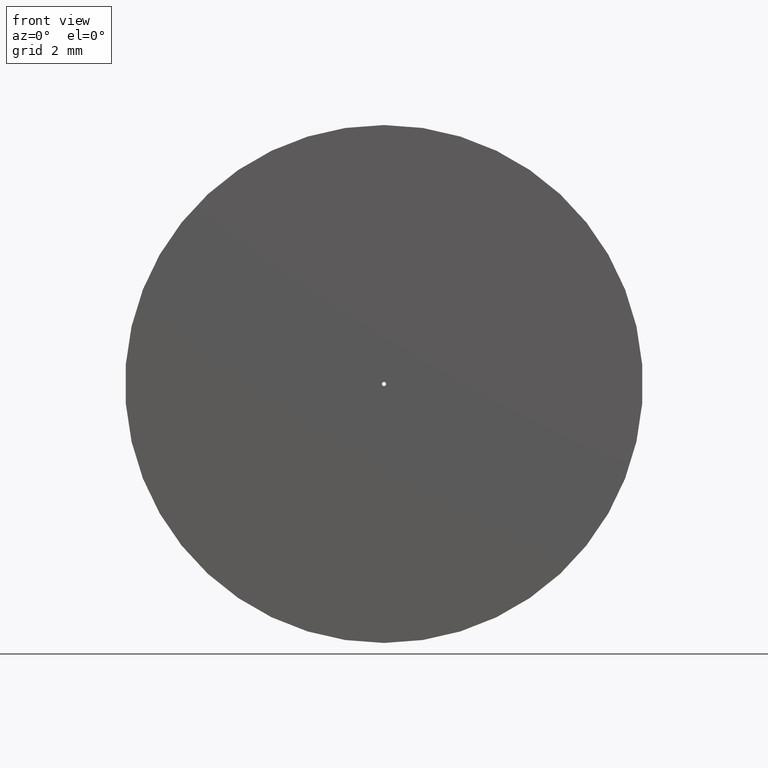
[diagram: clean part render]
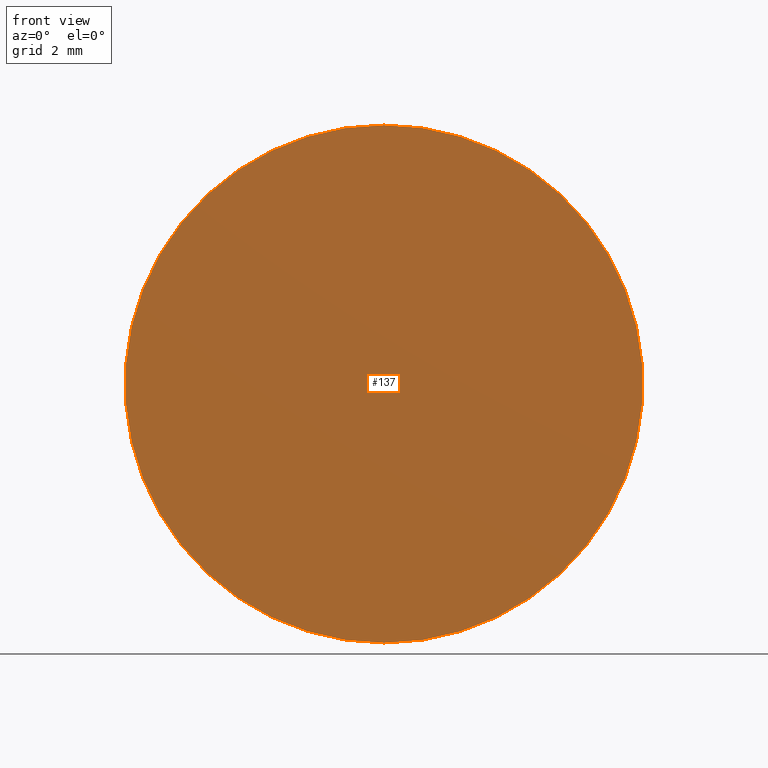
[diagram: same view with one face highlighted and labeled with its STEP entity id]
A machine part, front view. The second image highlights one B-rep face of the part: STEP entity #137.
In plain terms, the highlighted planar face has unit normal (0, 1, 0).
Its self-contained STEP definition (entity closure, byte-faithful):
#6 = AXIS2_PLACEMENT_3D ( 'NONE', #233, #236, #176 ) ;
#25 = CIRCLE ( 'NONE', #241, 4.750000000000000000 ) ;
#38 = AXIS2_PLACEMENT_3D ( 'NONE', #139, #83, #123 ) ;
#41 = CARTESIAN_POINT ( 'NONE',  ( 0.000000000000000000, 0.000000000000000000, 0.000000000000000000 ) ) ;
#42 = ORIENTED_EDGE ( 'NONE', *, *, #53, .T. ) ;
#53 = EDGE_CURVE ( 'NONE', #78, #117, #141, .T. ) ;
#56 = ORIENTED_EDGE ( 'NONE', *, *, #103, .F. ) ;
#57 = CIRCLE ( 'NONE', #77, 0.03749999999999999861 ) ;
#66 = CARTESIAN_POINT ( 'NONE',  ( 0.000000000000000000, 0.000000000000000000, -4.750000000000000000 ) ) ;
#77 = AXIS2_PLACEMENT_3D ( 'NONE', #120, #86, #224 ) ;
#78 = VERTEX_POINT ( 'NONE', #82 ) ;
#79 = DIRECTION ( 'NONE',  ( 0.000000000000000000, 0.000000000000000000, 1.000000000000000000 ) ) ;
#82 = CARTESIAN_POINT ( 'NONE',  ( 0.000000000000000000, 0.000000000000000000, -0.03749999999999999861 ) ) ;
#83 = DIRECTION ( 'NONE',  ( 0.000000000000000000, 1.000000000000000000, 0.000000000000000000 ) ) ;
#85 = DIRECTION ( 'NONE',  ( 0.000000000000000000, -0.000000000000000000, 1.000000000000000000 ) ) ;
#86 = DIRECTION ( 'NONE',  ( 0.000000000000000000, 1.000000000000000000, 0.000000000000000000 ) ) ;
#90 = AXIS2_PLACEMENT_3D ( 'NONE', #158, #161, #85 ) ;
#91 = VERTEX_POINT ( 'NONE', #235 ) ;
#95 = FACE_OUTER_BOUND ( 'NONE', #173, .T. ) ;
#103 = EDGE_CURVE ( 'NONE', #91, #212, #25, .T. ) ;
#114 = DIRECTION ( 'NONE',  ( 0.000000000000000000, 1.000000000000000000, 0.000000000000000000 ) ) ;
#117 = VERTEX_POINT ( 'NONE', #216 ) ;
#118 = FACE_BOUND ( 'NONE', #136, .T. ) ;
#120 = CARTESIAN_POINT ( 'NONE',  ( 0.000000000000000000, 0.000000000000000000, 0.000000000000000000 ) ) ;
#123 = DIRECTION ( 'NONE',  ( 0.000000000000000000, 0.000000000000000000, 1.000000000000000000 ) ) ;
#136 = EDGE_LOOP ( 'NONE', ( #42, #177 ) ) ;
#137 = ADVANCED_FACE ( 'NONE', ( #95, #118 ), #183, .F. ) ;
#139 = CARTESIAN_POINT ( 'NONE',  ( 0.000000000000000000, 0.000000000000000000, 0.000000000000000000 ) ) ;
#141 = CIRCLE ( 'NONE', #6, 0.03749999999999999861 ) ;
#145 = CIRCLE ( 'NONE', #38, 4.750000000000000000 ) ;
#158 = CARTESIAN_POINT ( 'NONE',  ( 0.000000000000000000, 0.000000000000000000, 0.000000000000000000 ) ) ;
#161 = DIRECTION ( 'NONE',  ( 0.000000000000000000, 1.000000000000000000, 0.000000000000000000 ) ) ;
#162 = EDGE_CURVE ( 'NONE', #212, #91, #145, .T. ) ;
#173 = EDGE_LOOP ( 'NONE', ( #193, #56 ) ) ;
#176 = DIRECTION ( 'NONE',  ( 0.000000000000000000, 0.000000000000000000, 1.000000000000000000 ) ) ;
#177 = ORIENTED_EDGE ( 'NONE', *, *, #230, .T. ) ;
#183 = PLANE ( 'NONE',  #90 ) ;
#193 = ORIENTED_EDGE ( 'NONE', *, *, #162, .F. ) ;
#212 = VERTEX_POINT ( 'NONE', #66 ) ;
#216 = CARTESIAN_POINT ( 'NONE',  ( 4.592425496802573602E-18, 0.000000000000000000, 0.03749999999999999861 ) ) ;
#224 = DIRECTION ( 'NONE',  ( 0.000000000000000000, 0.000000000000000000, 1.000000000000000000 ) ) ;
#230 = EDGE_CURVE ( 'NONE', #117, #78, #57, .T. ) ;
#233 = CARTESIAN_POINT ( 'NONE',  ( 0.000000000000000000, 0.000000000000000000, 0.000000000000000000 ) ) ;
#235 = CARTESIAN_POINT ( 'NONE',  ( 5.817072295949927426E-16, 0.000000000000000000, 4.750000000000000000 ) ) ;
#236 = DIRECTION ( 'NONE',  ( 0.000000000000000000, 1.000000000000000000, 0.000000000000000000 ) ) ;
#241 = AXIS2_PLACEMENT_3D ( 'NONE', #41, #114, #79 ) ;